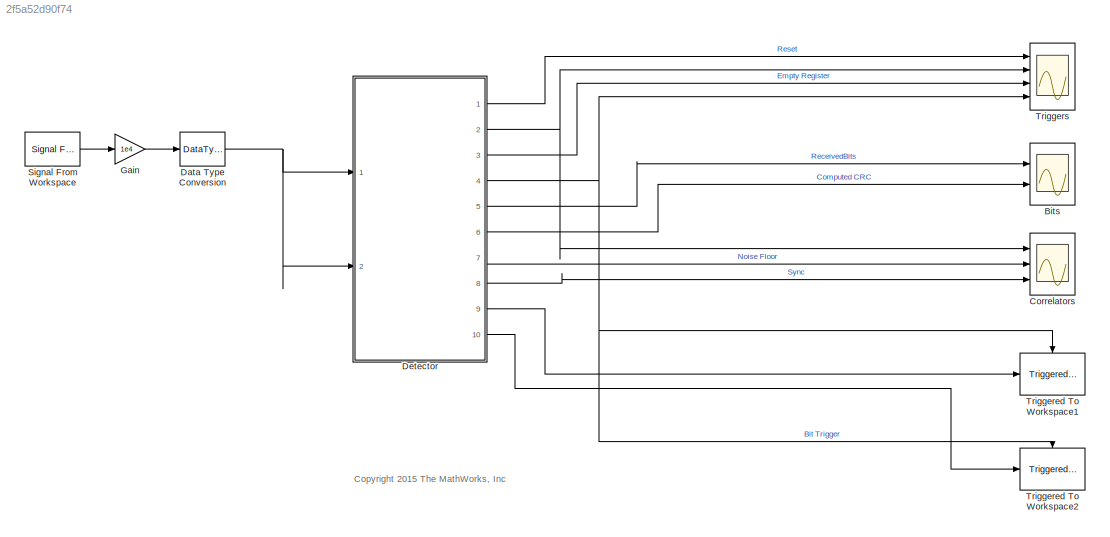
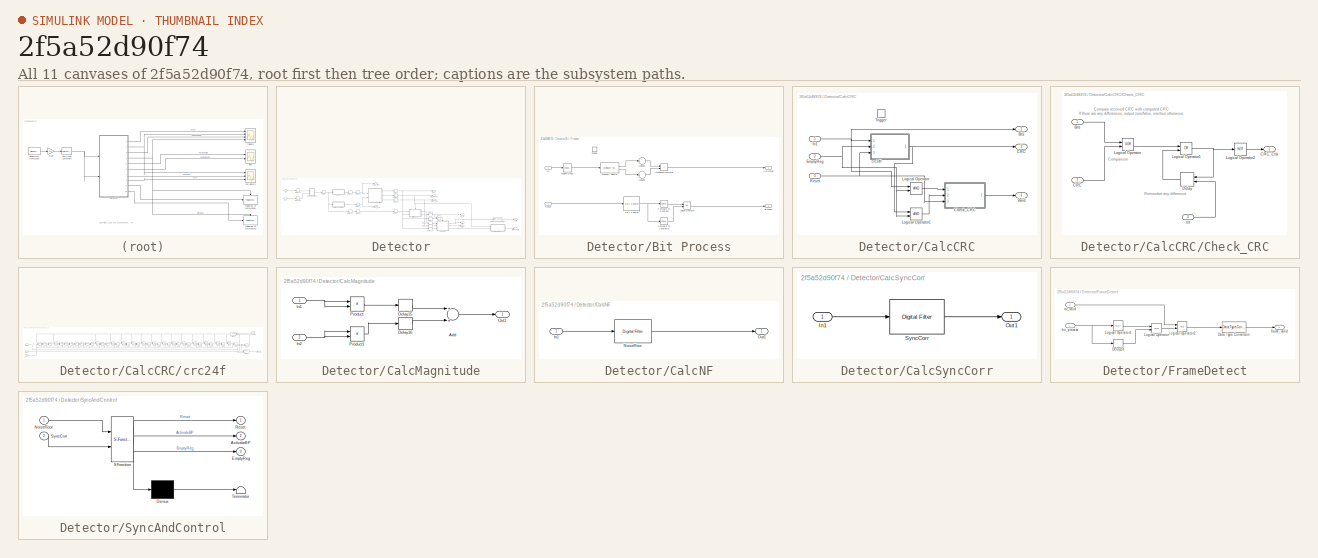
[diagram: thumbnail index - all 11 canvases of the model, root first then tree order]
MODEL slx_2f5a52d90f74
KIND model
CONFIG AbsTol = auto
CONFIG EnableMultiTasking = off
CONFIG FixedStep = auto
CONFIG MaxStep = auto
CONFIG MinStep = auto
CONFIG PreLoadFcn = load data_Yb;\n\nDataIn = Yb_with_time(:,2);\n\nwl=16;\n
CONFIG RelTol = 1e-3
CONFIG SampleTimeConstraint = Unconstrained
CONFIG Solver = VariableStepDiscrete
CONFIG SolverName = VariableStepDiscrete
CONFIG StartTime = 0.0
CONFIG StopTime = 1e6
BLOCK [Scope] Bits
  NumInputPorts = 2
  Ports = [2]
  ScopeSpecificationString = C++SS(StrPVP('Location','[10, 60, 1912, 1033]'),StrPVP('Open','off'),StrPVP('ZoomMode','xonly'),MxPVP('AxesTitles',53,'struct(''axes1'',''%<SignalLabel>'',''axes2'',''%<SignalLabel>'')'),MxPVP('ScopeGraphics',56,'struct(''FigureColor'',''[0.5 0.5 0.5]'',''AxesColor'',''[0 0 0]'',''AxesTickColor'',''[1 1 1]'',''LineColors'',''[1 1 0;1 0 1;0 1 1;1 0 0;0 1 0;0 0 1]'',''LineStyles'',''-|-|-|-|-|-'',''...<+320ch>
BLOCK [Scope] Correlators
  NumInputPorts = 3
  Ports = [3]
  ScopeSpecificationString = C++SS(StrPVP('Location','[1, 48, 1921, 1039]'),StrPVP('Open','off'),StrPVP('ZoomMode','xonly'),MxPVP('AxesTitles',53,'struct(''axes1'',''%<SignalLabel>'',''axes2'',''%<SignalLabel>'',''axes3'',''%<SignalLabel>'')'),MxPVP('ScopeGraphics',56,'struct(''FigureColor'',''[0.5 0.5 0.5]'',''AxesColor'',''[0 0 0]'',''AxesTickColor'',''[1 1 1]'',''LineColors'',''[1 1 0;1 0 1;0 1 1;1 0 0;0 1 0;0 0 1]'',''Lin...<+383ch>
BLOCK [DataTypeConversion] Data Type Conversion
  LockScale = on
  OutDataTypeStr = fixdt(1,wl,wl-1)
  RndMeth = Floor
  SaturateOnIntegerOverflow = off
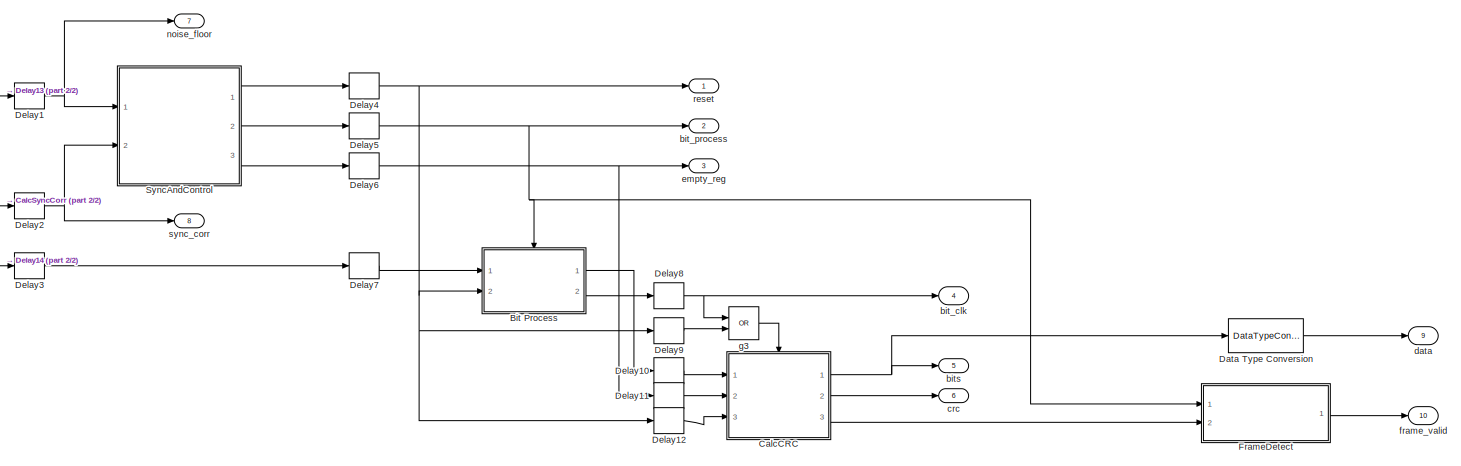
[diagram: Detector - part 1/2, center side, full height]
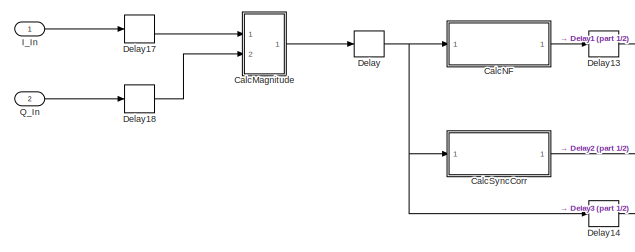
[diagram: Detector - part 2/2, middle left region]
BLOCK [SubSystem] Detector
  Ports = [2, 10]
  RequestExecContextInheritance = off
  TreatAsAtomicUnit = on
  Variant = off
BLOCK [SubSystem] Detector/Bit Process
  Ports = [2, 2, 1]
  RequestExecContextInheritance = off
  TreatAsAtomicUnit = on
  Variant = off
BLOCK [Outport] Detector/Bit Process/BitTrigger
  IconDisplay = Port number
  InitialOutput = 0
  Port = 2
BLOCK [Reference] Detector/Bit Process/Compare To Constant  REF=simulink/Logic and Bit
Operations/Compare
To Constant
  Ports = [1, 1]
  SourceBlock = simulink/Logic and Bit\nOperations/Compare\nTo Constant
  SourceProductBaseCode = SL
  SourceProductName = Simulink
  SourceType = Compare To Constant
BLOCK [Reference] Detector/Bit Process/Compare To Constant1  REF=simulink/Logic and Bit
Operations/Compare
To Constant
  Ports = [1, 1]
  SourceBlock = simulink/Logic and Bit\nOperations/Compare\nTo Constant
  SourceProductBaseCode = SL
  SourceProductName = Simulink
  SourceType = Compare To Constant
BLOCK [Outport] Detector/Bit Process/CurrentBit
  IconDisplay = Port number
  InitialOutput = 0
BLOCK [EnablePort] Detector/Bit Process/Enable
  Ports = []
BLOCK [Reference] Detector/Bit Process/HDL Counter  REF=hdlsllib/HDL Operations/HDL Counter
  Ports = [1, 1]
  SourceBlock = hdlsllib/HDL Operations/HDL Counter
  SourceProductBaseCode = HD
  SourceProductName = HDL Coder
  SourceType = HDL Counter
BLOCK [Inport] Detector/Bit Process/In1
  IconDisplay = Port number
BLOCK [Logic] Detector/Bit Process/Logical Operator
  AllPortsSameDT = off
  Operator = OR
  OutDataTypeStr = boolean
  Ports = [2, 1]
BLOCK [Sum] Detector/Bit Process/Logical0
  AccumDataTypeStr = fixdt(1,wl,wl-3)
  InputSameDT = off
  Inputs = +
  OutDataTypeStr = Inherit: Same as accumulator
  Ports = [1, 1]
  SaturateOnIntegerOverflow = off
BLOCK [Sum] Detector/Bit Process/Logical1
  AccumDataTypeStr = fixdt(1,wl,wl-3)
  InputSameDT = off
  Inputs = +
  OutDataTypeStr = Inherit: Same as accumulator
  Ports = [1, 1]
  SaturateOnIntegerOverflow = off
BLOCK [Reference] Detector/Bit Process/Multiport Selector  REF=dspindex/Multiport
Selector
  Ports = [1, 2]
  SourceBlock = dspindex/Multiport\nSelector
  SourceProductBaseCode = DS
  SourceProductName = DSP System Toolbox
  SourceType = Multiport Selector
BLOCK [RelationalOperator] Detector/Bit Process/Relational Operator
  InputSameDT = off
  Operator = >
  OutDataTypeStr = boolean
  Ports = [2, 1]
BLOCK [Inport] Detector/Bit Process/Reset
  IconDisplay = Port number
  Port = 2
BLOCK [Reference] Detector/Bit Process/Tapped Delay  REF=simulink/Discrete/Tapped Delay
  Ports = [1, 1]
  SourceBlock = simulink/Discrete/Tapped Delay
  SourceProductBaseCode = SL
  SourceProductName = Simulink
  SourceType = Tapped Delay Line
BLOCK [SubSystem] Detector/CalcCRC
  Ports = [3, 3, 0, 1]
  RequestExecContextInheritance = off
  Variant = off
BLOCK [Outport] Detector/CalcCRC/Bits
  IconDisplay = Port number
  InitialOutput = 0
BLOCK [Outport] Detector/CalcCRC/CRC
  IconDisplay = Port number
  InitialOutput = 0
  Port = 2
BLOCK [SubSystem] Detector/CalcCRC/Check_CRC
  Ports = [3, 1]
  RequestExecContextInheritance = off
  TreatAsAtomicUnit = on
  Variant = off
BLOCK [Inport] Detector/CalcCRC/Check_CRC/Bits
  IconDisplay = Port number
BLOCK [Inport] Detector/CalcCRC/Check_CRC/CRC
  IconDisplay = Port number
  Port = 2
BLOCK [Outport] Detector/CalcCRC/Check_CRC/CRC_Chk
  IconDisplay = Port number
  InitialOutput = 0
BLOCK [Delay] Detector/CalcCRC/Check_CRC/Delay
  DelayLength = 1
  ExternalReset = Level
  InputPortMap = u0,r5
  Ports = [2, 1]
BLOCK [Logic] Detector/CalcCRC/Check_CRC/Logical Operator
  AllPortsSameDT = off
  Operator = XOR
  OutDataTypeStr = boolean
  Ports = [2, 1]
BLOCK [Logic] Detector/CalcCRC/Check_CRC/Logical Operator1
  AllPortsSameDT = off
  Operator = OR
  OutDataTypeStr = boolean
  Ports = [2, 1]
BLOCK [Logic] Detector/CalcCRC/Check_CRC/Logical Operator2
  AllPortsSameDT = off
  Operator = NOT
  OutDataTypeStr = boolean
  Ports = [1, 1]
BLOCK [Inport] Detector/CalcCRC/Check_CRC/rst
  IconDisplay = Port number
  Port = 3
BLOCK [Inport] Detector/CalcCRC/EmptyReg
  IconDisplay = Port number
  Port = 2
BLOCK [Inport] Detector/CalcCRC/In1
  IconDisplay = Port number
BLOCK [Logic] Detector/CalcCRC/Logical Operator
  AllPortsSameDT = off
  OutDataTypeStr = boolean
  Ports = [2, 1]
BLOCK [Logic] Detector/CalcCRC/Logical Operator1
  AllPortsSameDT = off
  OutDataTypeStr = boolean
  Ports = [2, 1]
BLOCK [Inport] Detector/CalcCRC/Reset
  IconDisplay = Port number
  Port = 3
BLOCK [TriggerPort] Detector/CalcCRC/Trigger
  Ports = []
  StatesWhenEnabling = held
  VariantControl = Variant
BLOCK [Outport] Detector/CalcCRC/Valid
  IconDisplay = Port number
  InitialOutput = 0
  Port = 3
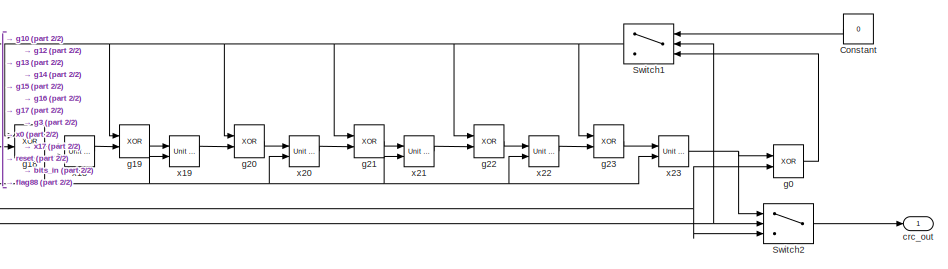
[diagram: Detector/CalcCRC/crc24f - part 1/2, right side, full height]
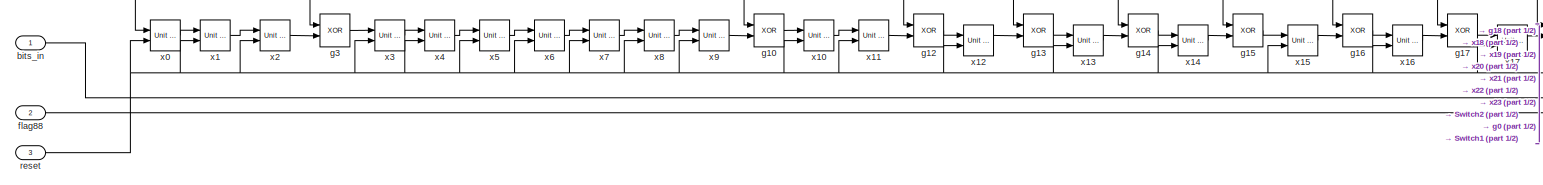
[diagram: Detector/CalcCRC/crc24f - part 2/2, bottom left region]
BLOCK [SubSystem] Detector/CalcCRC/crc24f
  Ports = [3, 1]
  RequestExecContextInheritance = off
  Variant = off
BLOCK [Constant] Detector/CalcCRC/crc24f/Constant
  OutDataTypeStr = boolean
  SampleTime = -1
  Value = 0
BLOCK [Switch] Detector/CalcCRC/crc24f/Switch1
  Criteria = u2 > Threshold
  InputSameDT = off
  SaturateOnIntegerOverflow = off
  Threshold = 0.5
BLOCK [Switch] Detector/CalcCRC/crc24f/Switch2
  Criteria = u2 > Threshold
  InputSameDT = off
  SaturateOnIntegerOverflow = off
  Threshold = 0.5
BLOCK [Inport] Detector/CalcCRC/crc24f/bits_in
  IconDisplay = Port number
BLOCK [Outport] Detector/CalcCRC/crc24f/crc_out
  IconDisplay = Port number
BLOCK [Inport] Detector/CalcCRC/crc24f/flag88
  IconDisplay = Port number
  Port = 2
BLOCK [Logic] Detector/CalcCRC/crc24f/g0
  AllPortsSameDT = off
  Operator = XOR
  OutDataTypeStr = boolean
  Ports = [2, 1]
BLOCK [Logic] Detector/CalcCRC/crc24f/g10
  AllPortsSameDT = off
  Operator = XOR
  OutDataTypeStr = boolean
  Ports = [2, 1]
BLOCK [Logic] Detector/CalcCRC/crc24f/g12
  AllPortsSameDT = off
  Operator = XOR
  OutDataTypeStr = boolean
  Ports = [2, 1]
BLOCK [Logic] Detector/CalcCRC/crc24f/g13
  AllPortsSameDT = off
  Operator = XOR
  OutDataTypeStr = boolean
  Ports = [2, 1]
BLOCK [Logic] Detector/CalcCRC/crc24f/g14
  AllPortsSameDT = off
  Operator = XOR
  OutDataTypeStr = boolean
  Ports = [2, 1]
BLOCK [Logic] Detector/CalcCRC/crc24f/g15
  AllPortsSameDT = off
  Operator = XOR
  OutDataTypeStr = boolean
  Ports = [2, 1]
BLOCK [Logic] Detector/CalcCRC/crc24f/g16
  AllPortsSameDT = off
  Operator = XOR
  OutDataTypeStr = boolean
  Ports = [2, 1]
BLOCK [Logic] Detector/CalcCRC/crc24f/g17
  AllPortsSameDT = off
  Operator = XOR
  OutDataTypeStr = boolean
  Ports = [2, 1]
BLOCK [Logic] Detector/CalcCRC/crc24f/g18
  AllPortsSameDT = off
  Operator = XOR
  OutDataTypeStr = boolean
  Ports = [2, 1]
BLOCK [Logic] Detector/CalcCRC/crc24f/g19
  AllPortsSameDT = off
  Operator = XOR
  OutDataTypeStr = boolean
  Ports = [2, 1]
BLOCK [Logic] Detector/CalcCRC/crc24f/g20
  AllPortsSameDT = off
  Operator = XOR
  OutDataTypeStr = boolean
  Ports = [2, 1]
BLOCK [Logic] Detector/CalcCRC/crc24f/g21
  AllPortsSameDT = off
  Operator = XOR
  OutDataTypeStr = boolean
  Ports = [2, 1]
BLOCK [Logic] Detector/CalcCRC/crc24f/g22
  AllPortsSameDT = off
  Operator = XOR
  OutDataTypeStr = boolean
  Ports = [2, 1]
BLOCK [Logic] Detector/CalcCRC/crc24f/g23
  AllPortsSameDT = off
  Operator = XOR
  OutDataTypeStr = boolean
  Ports = [2, 1]
BLOCK [Logic] Detector/CalcCRC/crc24f/g3
  AllPortsSameDT = off
  Operator = XOR
  OutDataTypeStr = boolean
  Ports = [2, 1]
BLOCK [Inport] Detector/CalcCRC/crc24f/reset
  IconDisplay = Port number
  Port = 3
BLOCK [Reference] Detector/CalcCRC/crc24f/x0  REF=simulink/Additional Math
& Discrete/Additional
Discrete/Unit Delay
Resettable
  Ports = [2, 1]
  SourceBlock = simulink/Additional Math\n& Discrete/Additional\nDiscrete/Unit Delay\nResettable
  SourceProductBaseCode = SL
  SourceProductName = Simulink
  SourceType = Unit Delay Resettable
BLOCK [Reference] Detector/CalcCRC/crc24f/x1  REF=simulink/Additional Math
& Discrete/Additional
Discrete/Unit Delay
Resettable
  Ports = [2, 1]
  SourceBlock = simulink/Additional Math\n& Discrete/Additional\nDiscrete/Unit Delay\nResettable
  SourceProductBaseCode = SL
  SourceProductName = Simulink
  SourceType = Unit Delay Resettable
BLOCK [Reference] Detector/CalcCRC/crc24f/x10  REF=simulink/Additional Math
& Discrete/Additional
Discrete/Unit Delay
Resettable
  Ports = [2, 1]
  SourceBlock = simulink/Additional Math\n& Discrete/Additional\nDiscrete/Unit Delay\nResettable
  SourceProductBaseCode = SL
  SourceProductName = Simulink
  SourceType = Unit Delay Resettable
BLOCK [Reference] Detector/CalcCRC/crc24f/x11  REF=simulink/Additional Math
& Discrete/Additional
Discrete/Unit Delay
Resettable
  Ports = [2, 1]
  SourceBlock = simulink/Additional Math\n& Discrete/Additional\nDiscrete/Unit Delay\nResettable
  SourceProductBaseCode = SL
  SourceProductName = Simulink
  SourceType = Unit Delay Resettable
BLOCK [Reference] Detector/CalcCRC/crc24f/x12  REF=simulink/Additional Math
& Discrete/Additional
Discrete/Unit Delay
Resettable
  Ports = [2, 1]
  SourceBlock = simulink/Additional Math\n& Discrete/Additional\nDiscrete/Unit Delay\nResettable
  SourceProductBaseCode = SL
  SourceProductName = Simulink
  SourceType = Unit Delay Resettable
BLOCK [Reference] Detector/CalcCRC/crc24f/x13  REF=simulink/Additional Math
& Discrete/Additional
Discrete/Unit Delay
Resettable
  Ports = [2, 1]
  SourceBlock = simulink/Additional Math\n& Discrete/Additional\nDiscrete/Unit Delay\nResettable
  SourceProductBaseCode = SL
  SourceProductName = Simulink
  SourceType = Unit Delay Resettable
BLOCK [Reference] Detector/CalcCRC/crc24f/x14  REF=simulink/Additional Math
& Discrete/Additional
Discrete/Unit Delay
Resettable
  Ports = [2, 1]
  SourceBlock = simulink/Additional Math\n& Discrete/Additional\nDiscrete/Unit Delay\nResettable
  SourceProductBaseCode = SL
  SourceProductName = Simulink
  SourceType = Unit Delay Resettable
BLOCK [Reference] Detector/CalcCRC/crc24f/x15  REF=simulink/Additional Math
& Discrete/Additional
Discrete/Unit Delay
Resettable
  Ports = [2, 1]
  SourceBlock = simulink/Additional Math\n& Discrete/Additional\nDiscrete/Unit Delay\nResettable
  SourceProductBaseCode = SL
  SourceProductName = Simulink
  SourceType = Unit Delay Resettable
BLOCK [Reference] Detector/CalcCRC/crc24f/x16  REF=simulink/Additional Math
& Discrete/Additional
Discrete/Unit Delay
Resettable
  Ports = [2, 1]
  SourceBlock = simulink/Additional Math\n& Discrete/Additional\nDiscrete/Unit Delay\nResettable
  SourceProductBaseCode = SL
  SourceProductName = Simulink
  SourceType = Unit Delay Resettable
BLOCK [Reference] Detector/CalcCRC/crc24f/x17  REF=simulink/Additional Math
& Discrete/Additional
Discrete/Unit Delay
Resettable
  Ports = [2, 1]
  SourceBlock = simulink/Additional Math\n& Discrete/Additional\nDiscrete/Unit Delay\nResettable
  SourceProductBaseCode = SL
  SourceProductName = Simulink
  SourceType = Unit Delay Resettable
BLOCK [Reference] Detector/CalcCRC/crc24f/x18  REF=simulink/Additional Math
& Discrete/Additional
Discrete/Unit Delay
Resettable
  Ports = [2, 1]
  SourceBlock = simulink/Additional Math\n& Discrete/Additional\nDiscrete/Unit Delay\nResettable
  SourceProductBaseCode = SL
  SourceProductName = Simulink
  SourceType = Unit Delay Resettable
BLOCK [Reference] Detector/CalcCRC/crc24f/x19  REF=simulink/Additional Math
& Discrete/Additional
Discrete/Unit Delay
Resettable
  Ports = [2, 1]
  SourceBlock = simulink/Additional Math\n& Discrete/Additional\nDiscrete/Unit Delay\nResettable
  SourceProductBaseCode = SL
  SourceProductName = Simulink
  SourceType = Unit Delay Resettable
BLOCK [Reference] Detector/CalcCRC/crc24f/x2  REF=simulink/Additional Math
& Discrete/Additional
Discrete/Unit Delay
Resettable
  Ports = [2, 1]
  SourceBlock = simulink/Additional Math\n& Discrete/Additional\nDiscrete/Unit Delay\nResettable
  SourceProductBaseCode = SL
  SourceProductName = Simulink
  SourceType = Unit Delay Resettable
BLOCK [Reference] Detector/CalcCRC/crc24f/x20  REF=simulink/Additional Math
& Discrete/Additional
Discrete/Unit Delay
Resettable
  Ports = [2, 1]
  SourceBlock = simulink/Additional Math\n& Discrete/Additional\nDiscrete/Unit Delay\nResettable
  SourceProductBaseCode = SL
  SourceProductName = Simulink
  SourceType = Unit Delay Resettable
BLOCK [Reference] Detector/CalcCRC/crc24f/x21  REF=simulink/Additional Math
& Discrete/Additional
Discrete/Unit Delay
Resettable
  Ports = [2, 1]
  SourceBlock = simulink/Additional Math\n& Discrete/Additional\nDiscrete/Unit Delay\nResettable
  SourceProductBaseCode = SL
  SourceProductName = Simulink
  SourceType = Unit Delay Resettable
BLOCK [Reference] Detector/CalcCRC/crc24f/x22  REF=simulink/Additional Math
& Discrete/Additional
Discrete/Unit Delay
Resettable
  Ports = [2, 1]
  SourceBlock = simulink/Additional Math\n& Discrete/Additional\nDiscrete/Unit Delay\nResettable
  SourceProductBaseCode = SL
  SourceProductName = Simulink
  SourceType = Unit Delay Resettable
BLOCK [Reference] Detector/CalcCRC/crc24f/x23  REF=simulink/Additional Math
& Discrete/Additional
Discrete/Unit Delay
Resettable
  Ports = [2, 1]
  SourceBlock = simulink/Additional Math\n& Discrete/Additional\nDiscrete/Unit Delay\nResettable
  SourceProductBaseCode = SL
  SourceProductName = Simulink
  SourceType = Unit Delay Resettable
BLOCK [Reference] Detector/CalcCRC/crc24f/x3  REF=simulink/Additional Math
& Discrete/Additional
Discrete/Unit Delay
Resettable
  Ports = [2, 1]
  SourceBlock = simulink/Additional Math\n& Discrete/Additional\nDiscrete/Unit Delay\nResettable
  SourceProductBaseCode = SL
  SourceProductName = Simulink
  SourceType = Unit Delay Resettable
BLOCK [Reference] Detector/CalcCRC/crc24f/x4  REF=simulink/Additional Math
& Discrete/Additional
Discrete/Unit Delay
Resettable
  Ports = [2, 1]
  SourceBlock = simulink/Additional Math\n& Discrete/Additional\nDiscrete/Unit Delay\nResettable
  SourceProductBaseCode = SL
  SourceProductName = Simulink
  SourceType = Unit Delay Resettable
BLOCK [Reference] Detector/CalcCRC/crc24f/x5  REF=simulink/Additional Math
& Discrete/Additional
Discrete/Unit Delay
Resettable
  Ports = [2, 1]
  SourceBlock = simulink/Additional Math\n& Discrete/Additional\nDiscrete/Unit Delay\nResettable
  SourceProductBaseCode = SL
  SourceProductName = Simulink
  SourceType = Unit Delay Resettable
BLOCK [Reference] Detector/CalcCRC/crc24f/x6  REF=simulink/Additional Math
& Discrete/Additional
Discrete/Unit Delay
Resettable
  Ports = [2, 1]
  SourceBlock = simulink/Additional Math\n& Discrete/Additional\nDiscrete/Unit Delay\nResettable
  SourceProductBaseCode = SL
  SourceProductName = Simulink
  SourceType = Unit Delay Resettable
BLOCK [Reference] Detector/CalcCRC/crc24f/x7  REF=simulink/Additional Math
& Discrete/Additional
Discrete/Unit Delay
Resettable
  Ports = [2, 1]
  SourceBlock = simulink/Additional Math\n& Discrete/Additional\nDiscrete/Unit Delay\nResettable
  SourceProductBaseCode = SL
  SourceProductName = Simulink
  SourceType = Unit Delay Resettable
BLOCK [Reference] Detector/CalcCRC/crc24f/x8  REF=simulink/Additional Math
& Discrete/Additional
Discrete/Unit Delay
Resettable
  Ports = [2, 1]
  SourceBlock = simulink/Additional Math\n& Discrete/Additional\nDiscrete/Unit Delay\nResettable
  SourceProductBaseCode = SL
  SourceProductName = Simulink
  SourceType = Unit Delay Resettable
BLOCK [Reference] Detector/CalcCRC/crc24f/x9  REF=simulink/Additional Math
& Discrete/Additional
Discrete/Unit Delay
Resettable
  Ports = [2, 1]
  SourceBlock = simulink/Additional Math\n& Discrete/Additional\nDiscrete/Unit Delay\nResettable
  SourceProductBaseCode = SL
  SourceProductName = Simulink
  SourceType = Unit Delay Resettable
BLOCK [SubSystem] Detector/CalcMagnitude
  Ports = [2, 1]
  RequestExecContextInheritance = off
  Variant = off
BLOCK [Sum] Detector/CalcMagnitude/Add
  InputSameDT = off
  OutDataTypeStr = fixdt(1,wl,wl-1)
  Ports = [2, 1]
  SaturateOnIntegerOverflow = off
BLOCK [Delay] Detector/CalcMagnitude/Delay15
  DelayLength = 1
  InitialCondition = 0
  InputPortMap = u0
  InputProcessing = Columns as channels (frame based)
  Ports = [1, 1]
  UserDataPersistent = on
BLOCK [Delay] Detector/CalcMagnitude/Delay16
  DelayLength = 1
  InitialCondition = 0
  InputPortMap = u0
  InputProcessing = Columns as channels (frame based)
  Ports = [1, 1]
  UserDataPersistent = on
BLOCK [Inport] Detector/CalcMagnitude/In1
  IconDisplay = Port number
BLOCK [Inport] Detector/CalcMagnitude/In2
  IconDisplay = Port number
  Port = 2
BLOCK [Outport] Detector/CalcMagnitude/Out1
  IconDisplay = Port number
BLOCK [Product] Detector/CalcMagnitude/Product
  InputSameDT = off
  OutDataTypeStr = fixdt(1,wl,wl-1)
  Ports = [2, 1]
  RndMeth = Floor
  SaturateOnIntegerOverflow = off
BLOCK [Product] Detector/CalcMagnitude/Product1
  InputSameDT = off
  OutDataTypeStr = fixdt(1,wl,wl-1)
  Ports = [2, 1]
  RndMeth = Floor
  SaturateOnIntegerOverflow = off
BLOCK [SubSystem] Detector/CalcNF
  Ports = [1, 1]
  RequestExecContextInheritance = off
  Variant = off
BLOCK [Inport] Detector/CalcNF/In1
  IconDisplay = Port number
BLOCK [Reference] Detector/CalcNF/NoiseFloor  REF=dspobslib/Digital Filter
  Ports = [1, 1]
  SourceBlock = dspobslib/Digital Filter
  SourceProductBaseCode = DS
  SourceProductName = DSP System Toolbox
  SourceType = Digital Filter
  UserDataPersistent = on
BLOCK [Outport] Detector/CalcNF/Out1
  IconDisplay = Port number
BLOCK [SubSystem] Detector/CalcSyncCorr
  Ports = [1, 1]
  RequestExecContextInheritance = off
  Variant = off
BLOCK [Inport] Detector/CalcSyncCorr/In1
  IconDisplay = Port number
BLOCK [Outport] Detector/CalcSyncCorr/Out1
  IconDisplay = Port number
BLOCK [Reference] Detector/CalcSyncCorr/SyncCorr  REF=dspobslib/Digital Filter
  Ports = [1, 1]
  SourceBlock = dspobslib/Digital Filter
  SourceProductBaseCode = DS
  SourceProductName = DSP System Toolbox
  SourceType = Digital Filter
  UserDataPersistent = on
BLOCK [DataTypeConversion] Detector/Data Type Conversion
  OutDataTypeStr = uint16
  RndMeth = Floor
  SaturateOnIntegerOverflow = off
BLOCK [Delay] Detector/Delay
  DelayLength = 1
  InitialCondition = 0
  InputPortMap = u0
  InputProcessing = Columns as channels (frame based)
  Ports = [1, 1]
  UserDataPersistent = on
BLOCK [Delay] Detector/Delay1
  DelayLength = 1
  InitialCondition = 0
  InputPortMap = u0
  InputProcessing = Columns as channels (frame based)
  Ports = [1, 1]
  UserDataPersistent = on
BLOCK [Delay] Detector/Delay10
  DelayLength = 1
  InitialCondition = 0
  InputPortMap = u0
  InputProcessing = Columns as channels (frame based)
  Ports = [1, 1]
  UserDataPersistent = on
BLOCK [Delay] Detector/Delay11
  DelayLength = 1
  InitialCondition = 0
  InputPortMap = u0
  InputProcessing = Columns as channels (frame based)
  Ports = [1, 1]
  UserDataPersistent = on
BLOCK [Delay] Detector/Delay12
  DelayLength = 1
  InitialCondition = 0
  InputPortMap = u0
  InputProcessing = Columns as channels (frame based)
  Ports = [1, 1]
  UserDataPersistent = on
BLOCK [Delay] Detector/Delay13
  DelayLength = 6
  InitialCondition = 0
  InputPortMap = u0
  InputProcessing = Columns as channels (frame based)
  Ports = [1, 1]
  UserDataPersistent = on
BLOCK [Delay] Detector/Delay14
  DelayLength = 8
  InitialCondition = 0
  InputPortMap = u0
  InputProcessing = Columns as channels (frame based)
  Ports = [1, 1]
  UserDataPersistent = on
BLOCK [Delay] Detector/Delay17
  DelayLength = 1
  InitialCondition = 0
  InputPortMap = u0
  InputProcessing = Columns as channels (frame based)
  Ports = [1, 1]
  UserDataPersistent = on
BLOCK [Delay] Detector/Delay18
  DelayLength = 1
  InitialCondition = 0
  InputPortMap = u0
  InputProcessing = Columns as channels (frame based)
  Ports = [1, 1]
  UserDataPersistent = on
BLOCK [Delay] Detector/Delay2
  DelayLength = 1
  InitialCondition = 0
  InputPortMap = u0
  InputProcessing = Columns as channels (frame based)
  Ports = [1, 1]
  UserDataPersistent = on
BLOCK [Delay] Detector/Delay3
  DelayLength = 1
  InitialCondition = 0
  InputPortMap = u0
  InputProcessing = Columns as channels (frame based)
  Ports = [1, 1]
  UserDataPersistent = on
BLOCK [Delay] Detector/Delay4
  DelayLength = 1
  InitialCondition = 0
  InputPortMap = u0
  InputProcessing = Columns as channels (frame based)
  Ports = [1, 1]
  UserDataPersistent = on
BLOCK [Delay] Detector/Delay5
  DelayLength = 1
  InitialCondition = 0
  InputPortMap = u0
  InputProcessing = Columns as channels (frame based)
  Ports = [1, 1]
  UserDataPersistent = on
BLOCK [Delay] Detector/Delay6
  DelayLength = 1
  InitialCondition = 0
  InputPortMap = u0
  InputProcessing = Columns as channels (frame based)
  Ports = [1, 1]
  UserDataPersistent = on
BLOCK [Delay] Detector/Delay7
  DelayLength = 1
  InitialCondition = 0
  InputPortMap = u0
  InputProcessing = Columns as channels (frame based)
  Ports = [1, 1]
  UserDataPersistent = on
BLOCK [Delay] Detector/Delay8
  DelayLength = 1
  InitialCondition = 0
  InputPortMap = u0
  InputProcessing = Columns as channels (frame based)
  Ports = [1, 1]
  UserDataPersistent = on
BLOCK [Delay] Detector/Delay9
  DelayLength = 1
  InitialCondition = 0
  InputPortMap = u0
  InputProcessing = Columns as channels (frame based)
  Ports = [1, 1]
  UserDataPersistent = on
BLOCK [SubSystem] Detector/FrameDetect
  Ports = [2, 1]
  RequestExecContextInheritance = off
  Variant = off
BLOCK [DataTypeConversion] Detector/FrameDetect/Data Type Conversion
  OutDataTypeStr = uint16
  RndMeth = Floor
  SaturateOnIntegerOverflow = off
BLOCK [Delay] Detector/FrameDetect/Delay14
  DelayLength = 1
  InitialCondition = 0
  InputPortMap = u0
  InputProcessing = Columns as channels (frame based)
  Ports = [1, 1]
  UserDataPersistent = on
BLOCK [Logic] Detector/FrameDetect/Logical Operator
  AllPortsSameDT = off
  OutDataTypeStr = boolean
  Ports = [2, 1]
BLOCK [Logic] Detector/FrameDetect/Logical Operator1
  AllPortsSameDT = off
  Operator = NOT
  OutDataTypeStr = boolean
  Ports = [1, 1]
BLOCK [Logic] Detector/FrameDetect/Logical Operator2
  AllPortsSameDT = off
  OutDataTypeStr = boolean
  Ports = [2, 1]
BLOCK [Inport] Detector/FrameDetect/bit_process
  IconDisplay = Port number
BLOCK [Inport] Detector/FrameDetect/crc_valid
  IconDisplay = Port number
  Port = 2
BLOCK [Outport] Detector/FrameDetect/frame_valid
  IconDisplay = Port number
BLOCK [Inport] Detector/I_In
  IconDisplay = Port number
BLOCK [Inport] Detector/Q_In
  IconDisplay = Port number
  Port = 2
BLOCK [SubSystem] Detector/SyncAndControl
  ErrorFcn = Stateflow.Translate.translate
  PermitHierarchicalResolution = ExplicitOnly
  Ports = [2, 3]
  RequestExecContextInheritance = off
  SFBlockType = Chart
  TreatAsAtomicUnit = on
  Variant = off
BLOCK [Demux] Detector/SyncAndControl/ Demux 
  Outputs = 1
  Ports = [1, 1]
BLOCK [S-Function] Detector/SyncAndControl/ SFunction 
  EnableBusSupport = off
  FunctionName = sf_sfun
  PortCounts = [2 4]
  Ports = [2, 4]
  SFcnIsStateOwnerBlock = off
  SFunctionDeploymentMode = off
  Tag = Stateflow S-Function ModeS_ADI_Codegen 1
BLOCK [Terminator] Detector/SyncAndControl/ Terminator 
BLOCK [Outport] Detector/SyncAndControl/ActivateBP
  IconDisplay = Port number
  Port = 2
BLOCK [Outport] Detector/SyncAndControl/EmptyReg
  IconDisplay = Port number
  Port = 3
BLOCK [Inport] Detector/SyncAndControl/NoiseFloor
  IconDisplay = Port number
BLOCK [Outport] Detector/SyncAndControl/Reset
  IconDisplay = Port number
BLOCK [Inport] Detector/SyncAndControl/SyncCorr
  IconDisplay = Port number
  Port = 2
BLOCK [Outport] Detector/bit_clk
  IconDisplay = Port number
  Port = 4
BLOCK [Outport] Detector/bit_process
  IconDisplay = Port number
  Port = 2
BLOCK [Outport] Detector/bits
  IconDisplay = Port number
  Port = 5
BLOCK [Outport] Detector/crc
  IconDisplay = Port number
  Port = 6
BLOCK [Outport] Detector/data
  IconDisplay = Port number
  Port = 9
BLOCK [Outport] Detector/empty_reg
  IconDisplay = Port number
  Port = 3
BLOCK [Outport] Detector/frame_valid
  IconDisplay = Port number
  Port = 10
BLOCK [Logic] Detector/g3
  AllPortsSameDT = off
  Operator = OR
  OutDataTypeStr = boolean
  Ports = [2, 1]
BLOCK [Outport] Detector/noise_floor
  IconDisplay = Port number
  Port = 7
BLOCK [Outport] Detector/reset
  IconDisplay = Port number
BLOCK [Outport] Detector/sync_corr
  IconDisplay = Port number
  Port = 8
BLOCK [Gain] Gain
  Gain = 1e4
  OutDataTypeStr = Inherit: Inherit via internal rule
  ParamDataTypeStr = Inherit: Inherit via internal rule
  SaturateOnIntegerOverflow = off
BLOCK [Reference] Signal From Workspace  REF=dspsrcs4/Signal From
Workspace
  Ports = [0, 1]
  SourceBlock = dspsrcs4/Signal From\nWorkspace
  SourceProductBaseCode = DS
  SourceProductName = DSP System Toolbox
  SourceType = Signal From Workspace
BLOCK [Reference] Triggered To Workspace1  REF=dspsnks4/Triggered
To Workspace
  Ports = [1, 0, 0, 1]
  SourceBlock = dspsnks4/Triggered\nTo Workspace
  SourceProductBaseCode = DS
  SourceProductName = DSP System Toolbox
  SourceType = Triggered To Workspace
  UserDataPersistent = on
BLOCK [Reference] Triggered To Workspace2  REF=dspsnks4/Triggered
To Workspace
  Ports = [1, 0, 0, 1]
  SourceBlock = dspsnks4/Triggered\nTo Workspace
  SourceProductBaseCode = DS
  SourceProductName = DSP System Toolbox
  SourceType = Triggered To Workspace
  UserDataPersistent = on
BLOCK [Scope] Triggers
  NumInputPorts = 4
  Ports = [4]
  ScopeSpecificationString = C++SS(StrPVP('Location','[10, 60, 1926, 1051]'),StrPVP('Open','off'),StrPVP('ZoomMode','xonly'),MxPVP('AxesTitles',53,'struct(''axes1'',''%<SignalLabel>'',''axes2'',''%<SignalLabel>'',''axes3'',''%<SignalLabel>'',''axes4'',''%<SignalLabel>'')'),MxPVP('ScopeGraphics',56,'struct(''FigureColor'',''[0.5 0.5 0.5]'',''AxesColor'',''[0 0 0]'',''AxesTickColor'',''[1 1 1]'',''LineColors'',''[1 1 0;1 0 1;0 ...<+428ch>
ANNOTATION (root): <copyright redacted>
ANNOTATION Detector/CalcCRC/Check_CRC: Compare received CRC with computed CRC If there are any differences, output zero/false, one/true otherwise.
ANNOTATION Detector/CalcCRC/Check_CRC: Comparison
ANNOTATION Detector/CalcCRC/Check_CRC: Remember any difference
NET Data Type Conversion:1 -> Detector:1, Detector:2
LINE Detector/Bit Process/Compare To Constant1:1 -> Detector/Bit Process/Logical Operator:2
LINE Detector/Bit Process/Compare To Constant:1 -> Detector/Bit Process/Logical Operator:1
NET Detector/Bit Process/HDL Counter:1 -> Detector/Bit Process/Compare To Constant1:1, Detector/Bit Process/Compare To Constant:1
LINE Detector/Bit Process/In1:1 -> Detector/Bit Process/Tapped Delay:1
LINE Detector/Bit Process/Logical Operator:1 -> Detector/Bit Process/BitTrigger:1
LINE Detector/Bit Process/Logical0:1 -> Detector/Bit Process/Relational Operator:2
LINE Detector/Bit Process/Logical1:1 -> Detector/Bit Process/Relational Operator:1
LINE Detector/Bit Process/Multiport Selector:1 -> Detector/Bit Process/Logical1:1
LINE Detector/Bit Process/Multiport Selector:2 -> Detector/Bit Process/Logical0:1
LINE Detector/Bit Process/Relational Operator:1 -> Detector/Bit Process/CurrentBit:1
LINE Detector/Bit Process/Reset:1 -> Detector/Bit Process/HDL Counter:1
LINE Detector/Bit Process/Tapped Delay:1 -> Detector/Bit Process/Multiport Selector:1
LINE Detector/Bit Process:1 -> Detector/Delay10:1
LINE Detector/Bit Process:2 -> Detector/Delay8:1
LINE Detector/CalcCRC/Check_CRC/Bits:1 -> Detector/CalcCRC/Check_CRC/Logical Operator:1
LINE Detector/CalcCRC/Check_CRC/CRC:1 -> Detector/CalcCRC/Check_CRC/Logical Operator:2
LINE Detector/CalcCRC/Check_CRC/Delay:1 -> Detector/CalcCRC/Check_CRC/Logical Operator1:2
NET Detector/CalcCRC/Check_CRC/Logical Operator1:1 -> Detector/CalcCRC/Check_CRC/Delay:1, Detector/CalcCRC/Check_CRC/Logical Operator2:1
LINE Detector/CalcCRC/Check_CRC/Logical Operator2:1 -> Detector/CalcCRC/Check_CRC/CRC_Chk:1
LINE Detector/CalcCRC/Check_CRC/Logical Operator:1 -> Detector/CalcCRC/Check_CRC/Logical Operator1:1
LINE Detector/CalcCRC/Check_CRC/rst:1 -> Detector/CalcCRC/Check_CRC/Delay:2
LINE Detector/CalcCRC/Check_CRC:1 -> Detector/CalcCRC/Valid:1
NET Detector/CalcCRC/EmptyReg:1 -> Detector/CalcCRC/Logical Operator1:2, Detector/CalcCRC/Logical Operator:2, Detector/CalcCRC/crc24f:2
NET Detector/CalcCRC/In1:1 -> Detector/CalcCRC/Bits:1, Detector/CalcCRC/Logical Operator:1, Detector/CalcCRC/crc24f:1
LINE Detector/CalcCRC/Logical Operator1:1 -> Detector/CalcCRC/Check_CRC:2
LINE Detector/CalcCRC/Logical Operator:1 -> Detector/CalcCRC/Check_CRC:1
NET Detector/CalcCRC/Reset:1 -> Detector/CalcCRC/Check_CRC:3, Detector/CalcCRC/crc24f:3
LINE Detector/CalcCRC/crc24f/Constant:1 -> Detector/CalcCRC/crc24f/Switch1:1
NET Detector/CalcCRC/crc24f/Switch1:1 -> Detector/CalcCRC/crc24f/g10:1, Detector/CalcCRC/crc24f/g12:1, Detector/CalcCRC/crc24f/g13:1, Detector/CalcCRC/crc24f/g14:1, Detector/CalcCRC/crc24f/g15:1, Detector/CalcCRC/crc24f/g16:1, Detector/CalcCRC/crc24f/g17:1, Detector/CalcCRC/crc24f/g18:1, Detector/CalcCRC/crc24f/g19:1, Detector/CalcCRC/crc24f/g20:1, Detector/CalcCRC/crc24f/g21:1, Detector/CalcCRC/crc24f/g22:1, Detector/CalcCRC/crc24f/g23:1, Detector/CalcCRC/crc24f/g3:1, Detector/CalcCRC/crc24f/x0:1
LINE Detector/CalcCRC/crc24f/Switch2:1 -> Detector/CalcCRC/crc24f/crc_out:1
NET Detector/CalcCRC/crc24f/bits_in:1 -> Detector/CalcCRC/crc24f/Switch2:3, Detector/CalcCRC/crc24f/g0:2
NET Detector/CalcCRC/crc24f/flag88:1 -> Detector/CalcCRC/crc24f/Switch1:2, Detector/CalcCRC/crc24f/Switch2:2
LINE Detector/CalcCRC/crc24f/g0:1 -> Detector/CalcCRC/crc24f/Switch1:3
LINE Detector/CalcCRC/crc24f/g10:1 -> Detector/CalcCRC/crc24f/x10:1
LINE Detector/CalcCRC/crc24f/g12:1 -> Detector/CalcCRC/crc24f/x12:1
LINE Detector/CalcCRC/crc24f/g13:1 -> Detector/CalcCRC/crc24f/x13:1
LINE Detector/CalcCRC/crc24f/g14:1 -> Detector/CalcCRC/crc24f/x14:1
LINE Detector/CalcCRC/crc24f/g15:1 -> Detector/CalcCRC/crc24f/x15:1
LINE Detector/CalcCRC/crc24f/g16:1 -> Detector/CalcCRC/crc24f/x16:1
LINE Detector/CalcCRC/crc24f/g17:1 -> Detector/CalcCRC/crc24f/x17:1
LINE Detector/CalcCRC/crc24f/g18:1 -> Detector/CalcCRC/crc24f/x18:1
LINE Detector/CalcCRC/crc24f/g19:1 -> Detector/CalcCRC/crc24f/x19:1
LINE Detector/CalcCRC/crc24f/g20:1 -> Detector/CalcCRC/crc24f/x20:1
LINE Detector/CalcCRC/crc24f/g21:1 -> Detector/CalcCRC/crc24f/x21:1
LINE Detector/CalcCRC/crc24f/g22:1 -> Detector/CalcCRC/crc24f/x22:1
LINE Detector/CalcCRC/crc24f/g23:1 -> Detector/CalcCRC/crc24f/x23:1
LINE Detector/CalcCRC/crc24f/g3:1 -> Detector/CalcCRC/crc24f/x3:1
NET Detector/CalcCRC/crc24f/reset:1 -> Detector/CalcCRC/crc24f/x0:2, Detector/CalcCRC/crc24f/x10:2, Detector/CalcCRC/crc24f/x11:2, Detector/CalcCRC/crc24f/x12:2, Detector/CalcCRC/crc24f/x13:2, Detector/CalcCRC/crc24f/x14:2, Detector/CalcCRC/crc24f/x15:2, Detector/CalcCRC/crc24f/x16:2, Detector/CalcCRC/crc24f/x17:2, Detector/CalcCRC/crc24f/x18:2, Detector/CalcCRC/crc24f/x19:2, Detector/CalcCRC/crc24f/x1:2, Detector/CalcCRC/crc24f/x20:2, Detector/CalcCRC/crc24f/x21:2, Detector/CalcCRC/crc24f/x22:2, Detector/CalcCRC/crc24f/x23:2, Detector/CalcCRC/crc24f/x2:2, Detector/CalcCRC/crc24f/x3:2, Detector/CalcCRC/crc24f/x4:2, Detector/CalcCRC/crc24f/x5:2, Detector/CalcCRC/crc24f/x6:2, Detector/CalcCRC/crc24f/x7:2, Detector/CalcCRC/crc24f/x8:2, Detector/CalcCRC/crc24f/x9:2
LINE Detector/CalcCRC/crc24f/x0:1 -> Detector/CalcCRC/crc24f/x1:1
LINE Detector/CalcCRC/crc24f/x10:1 -> Detector/CalcCRC/crc24f/x11:1
LINE Detector/CalcCRC/crc24f/x11:1 -> Detector/CalcCRC/crc24f/g12:2
LINE Detector/CalcCRC/crc24f/x12:1 -> Detector/CalcCRC/crc24f/g13:2
LINE Detector/CalcCRC/crc24f/x13:1 -> Detector/CalcCRC/crc24f/g14:2
LINE Detector/CalcCRC/crc24f/x14:1 -> Detector/CalcCRC/crc24f/g15:2
LINE Detector/CalcCRC/crc24f/x15:1 -> Detector/CalcCRC/crc24f/g16:2
LINE Detector/CalcCRC/crc24f/x16:1 -> Detector/CalcCRC/crc24f/g17:2
LINE Detector/CalcCRC/crc24f/x17:1 -> Detector/CalcCRC/crc24f/g18:2
LINE Detector/CalcCRC/crc24f/x18:1 -> Detector/CalcCRC/crc24f/g19:2
LINE Detector/CalcCRC/crc24f/x19:1 -> Detector/CalcCRC/crc24f/g20:2
LINE Detector/CalcCRC/crc24f/x1:1 -> Detector/CalcCRC/crc24f/x2:1
LINE Detector/CalcCRC/crc24f/x20:1 -> Detector/CalcCRC/crc24f/g21:2
LINE Detector/CalcCRC/crc24f/x21:1 -> Detector/CalcCRC/crc24f/g22:2
LINE Detector/CalcCRC/crc24f/x22:1 -> Detector/CalcCRC/crc24f/g23:2
NET Detector/CalcCRC/crc24f/x23:1 -> Detector/CalcCRC/crc24f/Switch2:1, Detector/CalcCRC/crc24f/g0:1
LINE Detector/CalcCRC/crc24f/x2:1 -> Detector/CalcCRC/crc24f/g3:2
LINE Detector/CalcCRC/crc24f/x3:1 -> Detector/CalcCRC/crc24f/x4:1
LINE Detector/CalcCRC/crc24f/x4:1 -> Detector/CalcCRC/crc24f/x5:1
LINE Detector/CalcCRC/crc24f/x5:1 -> Detector/CalcCRC/crc24f/x6:1
LINE Detector/CalcCRC/crc24f/x6:1 -> Detector/CalcCRC/crc24f/x7:1
LINE Detector/CalcCRC/crc24f/x7:1 -> Detector/CalcCRC/crc24f/x8:1
LINE Detector/CalcCRC/crc24f/x8:1 -> Detector/CalcCRC/crc24f/x9:1
LINE Detector/CalcCRC/crc24f/x9:1 -> Detector/CalcCRC/crc24f/g10:2
NET Detector/CalcCRC/crc24f:1 -> Detector/CalcCRC/CRC:1, Detector/CalcCRC/Logical Operator1:1
NET Detector/CalcCRC:1 -> Detector/Data Type Conversion:1, Detector/bits:1
LINE Detector/CalcCRC:2 -> Detector/crc:1
LINE Detector/CalcCRC:3 -> Detector/FrameDetect:2
LINE Detector/CalcMagnitude/Add:1 -> Detector/CalcMagnitude/Out1:1
LINE Detector/CalcMagnitude/Delay15:1 -> Detector/CalcMagnitude/Add:1
LINE Detector/CalcMagnitude/Delay16:1 -> Detector/CalcMagnitude/Add:2
NET Detector/CalcMagnitude/In1:1 -> Detector/CalcMagnitude/Product:1, Detector/CalcMagnitude/Product:2
NET Detector/CalcMagnitude/In2:1 -> Detector/CalcMagnitude/Product1:1, Detector/CalcMagnitude/Product1:2
LINE Detector/CalcMagnitude/Product1:1 -> Detector/CalcMagnitude/Delay16:1
LINE Detector/CalcMagnitude/Product:1 -> Detector/CalcMagnitude/Delay15:1
LINE Detector/CalcMagnitude:1 -> Detector/Delay:1
LINE Detector/CalcNF/In1:1 -> Detector/CalcNF/NoiseFloor:1
LINE Detector/CalcNF/NoiseFloor:1 -> Detector/CalcNF/Out1:1
LINE Detector/CalcNF:1 -> Detector/Delay13:1
LINE Detector/CalcSyncCorr/In1:1 -> Detector/CalcSyncCorr/SyncCorr:1
LINE Detector/CalcSyncCorr/SyncCorr:1 -> Detector/CalcSyncCorr/Out1:1
LINE Detector/CalcSyncCorr:1 -> Detector/Delay2:1
LINE Detector/Data Type Conversion:1 -> Detector/data:1
LINE Detector/Delay10:1 -> Detector/CalcCRC:1
LINE Detector/Delay11:1 -> Detector/CalcCRC:2
LINE Detector/Delay12:1 -> Detector/CalcCRC:3
LINE Detector/Delay13:1 -> Detector/Delay1:1
LINE Detector/Delay14:1 -> Detector/Delay3:1
LINE Detector/Delay17:1 -> Detector/CalcMagnitude:1
LINE Detector/Delay18:1 -> Detector/CalcMagnitude:2
NET Detector/Delay1:1 -> Detector/SyncAndControl:1, Detector/noise_floor:1
NET Detector/Delay2:1 -> Detector/SyncAndControl:2, Detector/sync_corr:1
LINE Detector/Delay3:1 -> Detector/Delay7:1
NET Detector/Delay4:1 -> Detector/Bit Process:2, Detector/Delay12:1, Detector/Delay9:1, Detector/reset:1
NET Detector/Delay5:1 -> Detector/Bit Process:enable, Detector/FrameDetect:1, Detector/bit_process:1
NET Detector/Delay6:1 -> Detector/Delay11:1, Detector/empty_reg:1
LINE Detector/Delay7:1 -> Detector/Bit Process:1
NET Detector/Delay8:1 -> Detector/bit_clk:1, Detector/g3:1
LINE Detector/Delay9:1 -> Detector/g3:2
NET Detector/Delay:1 -> Detector/CalcNF:1, Detector/CalcSyncCorr:1, Detector/Delay14:1
LINE Detector/FrameDetect/Data Type Conversion:1 -> Detector/FrameDetect/frame_valid:1
LINE Detector/FrameDetect/Delay14:1 -> Detector/FrameDetect/Logical Operator:2
LINE Detector/FrameDetect/Logical Operator1:1 -> Detector/FrameDetect/Logical Operator:1
LINE Detector/FrameDetect/Logical Operator2:1 -> Detector/FrameDetect/Data Type Conversion:1
LINE Detector/FrameDetect/Logical Operator:1 -> Detector/FrameDetect/Logical Operator2:2
NET Detector/FrameDetect/bit_process:1 -> Detector/FrameDetect/Delay14:1, Detector/FrameDetect/Logical Operator1:1
LINE Detector/FrameDetect/crc_valid:1 -> Detector/FrameDetect/Logical Operator2:1
LINE Detector/FrameDetect:1 -> Detector/frame_valid:1
LINE Detector/I_In:1 -> Detector/Delay17:1
LINE Detector/Q_In:1 -> Detector/Delay18:1
LINE Detector/SyncAndControl:1 -> Detector/Delay4:1
LINE Detector/SyncAndControl:2 -> Detector/Delay5:1
LINE Detector/SyncAndControl:3 -> Detector/Delay6:1
LINE Detector/g3:1 -> Detector/CalcCRC:trigger
LINE Detector:1 -> Triggers:1
LINE Detector:10 -> Triggered To Workspace2:1
NET Detector:2 -> Correlators:1, Triggers:2
LINE Detector:3 -> Triggers:3
NET Detector:4 -> Triggered To Workspace1:trigger, Triggered To Workspace2:trigger, Triggers:4
LINE Detector:5 -> Bits:1
LINE Detector:6 -> Bits:2
LINE Detector:7 -> Correlators:2
LINE Detector:8 -> Correlators:3
LINE Detector:9 -> Triggered To Workspace1:1
LINE Gain:1 -> Data Type Conversion:1
LINE Signal From Workspace:1 -> Gain:1
note: NET lines group one-source signal fan-out (src -> all destinations, sorted); 1:1 wires keep LINE
CHART Detector/SyncAndControl states=5 transitions=12
  STATE_LABEL 'SyncSearch'
  STATE_LABEL 'WaitForT0\nT0Delay++;'
  STATE_LABEL 'BitProcess\nSamplesIn++;\nReset = 0;'
  STATE_LABEL 'ClearBP\nSamplesIn++;'
  STATE_LABEL 'EmptyReg\nCRCClocks++;'
